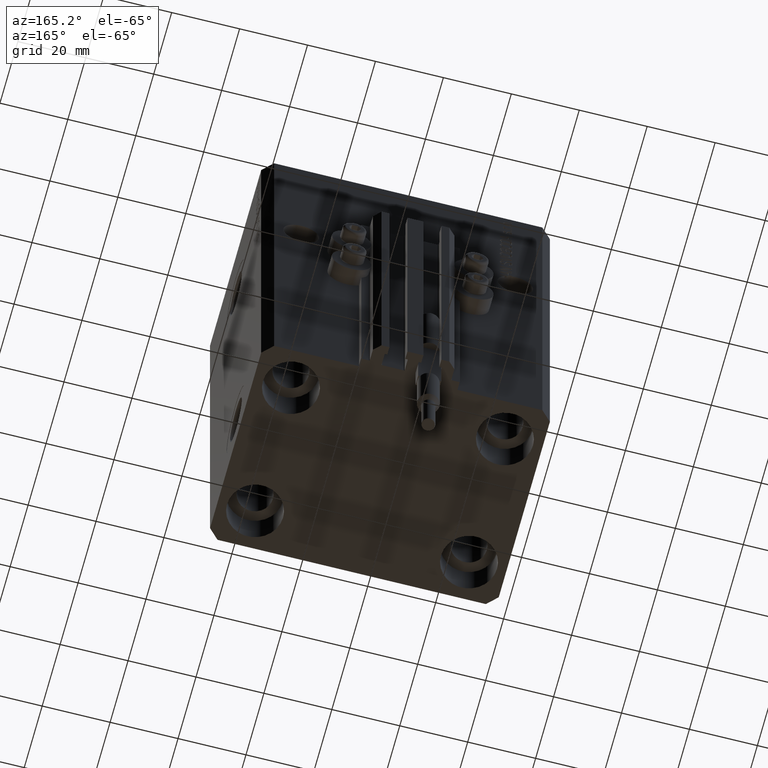
[diagram: clean part render]
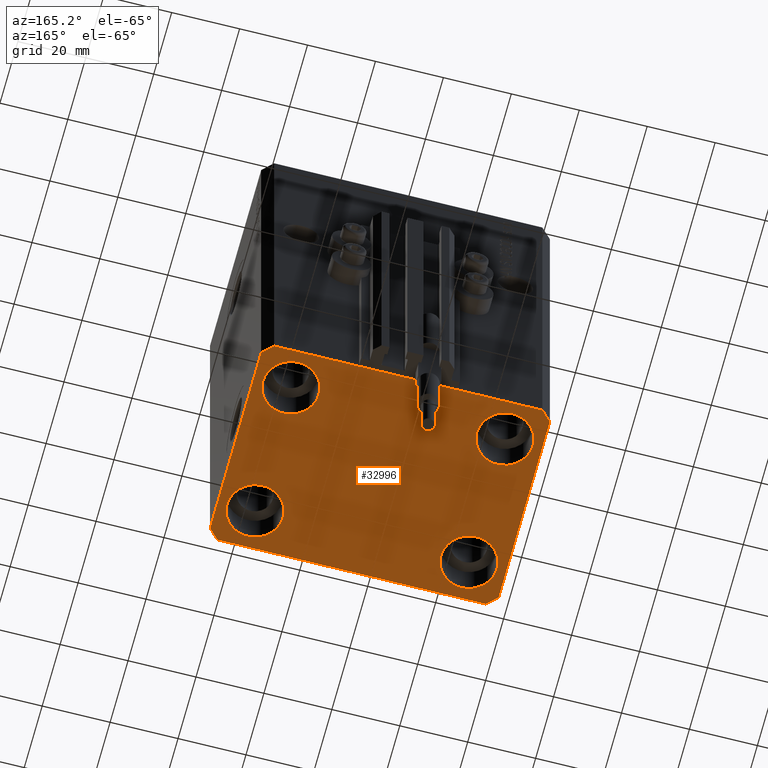
[diagram: same view with one face highlighted and labeled with its STEP entity id]
A machine part, auxiliary view. The second image highlights one B-rep face of the part: STEP entity #32996.
In plain terms, the highlighted planar face has unit normal (0, 0, 1).
Its self-contained STEP definition (entity closure, byte-faithful):
#185 = ORIENTED_EDGE ( 'NONE', *, *, #10552, .T. ) ;
#388 = VERTEX_POINT ( 'NONE', #18147 ) ;
#412 = CARTESIAN_POINT ( 'NONE',  ( 39.50000000000000711, -31.50000000000000000, -123.0000000000000000 ) ) ;
#756 = AXIS2_PLACEMENT_3D ( 'NONE', #18812, #11458, #37631 ) ;
#1199 = EDGE_CURVE ( 'NONE', #43645, #388, #7358, .T. ) ;
#1342 = ORIENTED_EDGE ( 'NONE', *, *, #24505, .F. ) ;
#1542 = CARTESIAN_POINT ( 'NONE',  ( 39.50000000000000711, -31.50000000000000000, -123.0000000000000000 ) ) ;
#1707 = EDGE_LOOP ( 'NONE', ( #45149, #185 ) ) ;
#1813 = LINE ( 'NONE', #23847, #11632 ) ;
#1995 = CARTESIAN_POINT ( 'NONE',  ( -39.75000000000000000, -20.00000000000000000, -123.0000000000000000 ) ) ;
#2059 = ORIENTED_EDGE ( 'NONE', *, *, #16062, .F. ) ;
#2182 = CARTESIAN_POINT ( 'NONE',  ( 42.50000000000000711, -28.50000000000000355, -123.0000000000000000 ) ) ;
#2294 = ORIENTED_EDGE ( 'NONE', *, *, #24194, .F. ) ;
#2515 = AXIS2_PLACEMENT_3D ( 'NONE', #4360, #45460, #20268 ) ;
#2713 = VERTEX_POINT ( 'NONE', #25180 ) ;
#2949 = CIRCLE ( 'NONE', #36535, 8.250000000000000000 ) ;
#3227 = EDGE_CURVE ( 'NONE', #14830, #2713, #1813, .T. ) ;
#3798 = DIRECTION ( 'NONE',  ( -1.000000000000000000, 0.000000000000000000, 0.000000000000000000 ) ) ;
#4141 = ORIENTED_EDGE ( 'NONE', *, *, #35540, .T. ) ;
#4277 = LINE ( 'NONE', #41690, #22049 ) ;
#4360 = CARTESIAN_POINT ( 'NONE',  ( 31.50000000000000000, -20.00000000000000000, -123.0000000000000000 ) ) ;
#4690 = ORIENTED_EDGE ( 'NONE', *, *, #39031, .T. ) ;
#4961 = VERTEX_POINT ( 'NONE', #24162 ) ;
#5766 = CARTESIAN_POINT ( 'NONE',  ( -23.25000000000000000, 20.00000000000000000, -123.0000000000000000 ) ) ;
#6188 = FACE_OUTER_BOUND ( 'NONE', #11922, .T. ) ;
#6190 = AXIS2_PLACEMENT_3D ( 'NONE', #38860, #9262, #43486 ) ;
#6289 = VERTEX_POINT ( 'NONE', #46328 ) ;
#6582 = EDGE_CURVE ( 'NONE', #388, #38317, #26707, .T. ) ;
#6678 = DIRECTION ( 'NONE',  ( 0.000000000000000000, 0.000000000000000000, 1.000000000000000000 ) ) ;
#7358 = LINE ( 'NONE', #33998, #25619 ) ;
#7962 = CIRCLE ( 'NONE', #2515, 8.249999999999992895 ) ;
#8727 = CARTESIAN_POINT ( 'NONE',  ( 23.25000000000000355, 20.00000000000001066, -123.0000000000000000 ) ) ;
#9167 = DIRECTION ( 'NONE',  ( 1.000000000000000000, 0.000000000000000000, 0.000000000000000000 ) ) ;
#9216 = CARTESIAN_POINT ( 'NONE',  ( 31.50000000000000000, 20.00000000000001066, -123.0000000000000000 ) ) ;
#9262 = DIRECTION ( 'NONE',  ( -0.000000000000000000, -0.000000000000000000, 1.000000000000000000 ) ) ;
#9516 = VERTEX_POINT ( 'NONE', #45014 ) ;
#9729 = ORIENTED_EDGE ( 'NONE', *, *, #20925, .T. ) ;
#10128 = CARTESIAN_POINT ( 'NONE',  ( 39.74999999999999289, 20.00000000000001066, -123.0000000000000000 ) ) ;
#10552 = EDGE_CURVE ( 'NONE', #22309, #6289, #2949, .T. ) ;
#10920 = CIRCLE ( 'NONE', #6190, 8.249999999999992895 ) ;
#11458 = DIRECTION ( 'NONE',  ( -0.000000000000000000, -0.000000000000000000, 1.000000000000000000 ) ) ;
#11632 = VECTOR ( 'NONE', #16263, 1000.000000000000114 ) ;
#11922 = EDGE_LOOP ( 'NONE', ( #1342, #38624, #24163, #21888, #2059, #2294, #39401, #14303 ) ) ;
#12959 = EDGE_CURVE ( 'NONE', #9516, #14830, #35676, .T. ) ;
#12971 = ORIENTED_EDGE ( 'NONE', *, *, #47471, .T. ) ;
#14303 = ORIENTED_EDGE ( 'NONE', *, *, #1199, .F. ) ;
#14426 = CARTESIAN_POINT ( 'NONE',  ( -39.50000000000000711, -31.50000000000000000, -123.0000000000000000 ) ) ;
#14830 = VERTEX_POINT ( 'NONE', #17424 ) ;
#15446 = EDGE_CURVE ( 'NONE', #6289, #22309, #40613, .T. ) ;
#16062 = EDGE_CURVE ( 'NONE', #4961, #36512, #40108, .T. ) ;
#16081 = CARTESIAN_POINT ( 'NONE',  ( -42.50000000000000000, -28.50000000000000000, -123.0000000000000000 ) ) ;
#16154 = EDGE_CURVE ( 'NONE', #42665, #38089, #23411, .T. ) ;
#16263 = DIRECTION ( 'NONE',  ( -0.7071067811865356934, 0.7071067811865594521, 0.000000000000000000 ) ) ;
#16474 = DIRECTION ( 'NONE',  ( 0.7071067811865483499, 0.7071067811865466846, 0.000000000000000000 ) ) ;
#17046 = DIRECTION ( 'NONE',  ( 1.000000000000000000, 0.000000000000000000, 0.000000000000000000 ) ) ;
#17385 = DIRECTION ( 'NONE',  ( 1.000000000000000000, 0.000000000000000000, 0.000000000000000000 ) ) ;
#17424 = CARTESIAN_POINT ( 'NONE',  ( 42.50000000000051870, 28.49999999999995381, -123.0000000000000000 ) ) ;
#17981 = AXIS2_PLACEMENT_3D ( 'NONE', #44088, #6678, #21609 ) ;
#18018 = CARTESIAN_POINT ( 'NONE',  ( 39.74999999999999289, -20.00000000000000000, -123.0000000000000000 ) ) ;
#18147 = CARTESIAN_POINT ( 'NONE',  ( -42.50000000000000000, 28.50000000000000000, -123.0000000000000000 ) ) ;
#18812 = CARTESIAN_POINT ( 'NONE',  ( -31.50000000000000000, -20.00000000000000000, -123.0000000000000000 ) ) ;
#19847 = CARTESIAN_POINT ( 'NONE',  ( -39.50000000000000711, 31.50000000000000000, -123.0000000000000000 ) ) ;
#20268 = DIRECTION ( 'NONE',  ( 1.000000000000000000, 0.000000000000000000, 0.000000000000000000 ) ) ;
#20925 = EDGE_CURVE ( 'NONE', #24383, #42198, #7962, .T. ) ;
#21470 = AXIS2_PLACEMENT_3D ( 'NONE', #48125, #37336, #41005 ) ;
#21609 = DIRECTION ( 'NONE',  ( 1.000000000000000000, 0.000000000000000000, -0.000000000000000000 ) ) ;
#21888 = ORIENTED_EDGE ( 'NONE', *, *, #43323, .F. ) ;
#22049 = VECTOR ( 'NONE', #3798, 1000.000000000000000 ) ;
#22309 = VERTEX_POINT ( 'NONE', #5766 ) ;
#22705 = LINE ( 'NONE', #16081, #35281 ) ;
#22722 = CIRCLE ( 'NONE', #45363, 8.249999999999992895 ) ;
#23009 = CARTESIAN_POINT ( 'NONE',  ( -42.50000000000000000, -28.50000000000000000, -123.0000000000000000 ) ) ;
#23411 = CIRCLE ( 'NONE', #756, 8.250000000000000000 ) ;
#23553 = ORIENTED_EDGE ( 'NONE', *, *, #32558, .T. ) ;
#23595 = EDGE_LOOP ( 'NONE', ( #23553, #4141 ) ) ;
#23838 = EDGE_LOOP ( 'NONE', ( #4690, #9729 ) ) ;
#23847 = CARTESIAN_POINT ( 'NONE',  ( 42.50000000000051870, 28.49999999999995381, -123.0000000000000000 ) ) ;
#24162 = CARTESIAN_POINT ( 'NONE',  ( -39.50000000000000711, -31.50000000000000000, -123.0000000000000000 ) ) ;
#24163 = ORIENTED_EDGE ( 'NONE', *, *, #12959, .F. ) ;
#24194 = EDGE_CURVE ( 'NONE', #38317, #4961, #22705, .T. ) ;
#24383 = VERTEX_POINT ( 'NONE', #18018 ) ;
#24505 = EDGE_CURVE ( 'NONE', #2713, #43645, #4277, .T. ) ;
#24663 = VERTEX_POINT ( 'NONE', #10128 ) ;
#24716 = DIRECTION ( 'NONE',  ( -0.000000000000000000, -0.000000000000000000, 1.000000000000000000 ) ) ;
#25180 = CARTESIAN_POINT ( 'NONE',  ( 39.50000000000056843, 31.50000000000000000, -123.0000000000000000 ) ) ;
#25285 = FACE_BOUND ( 'NONE', #1707, .T. ) ;
#25524 = FACE_BOUND ( 'NONE', #41248, .T. ) ;
#25596 = VECTOR ( 'NONE', #37945, 1000.000000000000000 ) ;
#25619 = VECTOR ( 'NONE', #33762, 1000.000000000000000 ) ;
#26707 = LINE ( 'NONE', #41609, #25596 ) ;
#28598 = DIRECTION ( 'NONE',  ( 8.886653596232072440E-15, 1.000000000000000000, 0.000000000000000000 ) ) ;
#28928 = FACE_BOUND ( 'NONE', #23838, .T. ) ;
#30253 = DIRECTION ( 'NONE',  ( 0.7071067811865471286, -0.7071067811865479058, 0.000000000000000000 ) ) ;
#30330 = VERTEX_POINT ( 'NONE', #8727 ) ;
#31208 = AXIS2_PLACEMENT_3D ( 'NONE', #38764, #46111, #9167 ) ;
#31767 = DIRECTION ( 'NONE',  ( -0.000000000000000000, -0.000000000000000000, 1.000000000000000000 ) ) ;
#32419 = DIRECTION ( 'NONE',  ( -0.000000000000000000, -0.000000000000000000, 1.000000000000000000 ) ) ;
#32558 = EDGE_CURVE ( 'NONE', #30330, #24663, #10920, .T. ) ;
#32996 = ADVANCED_FACE ( 'NONE', ( #25524, #28928, #35770, #25285, #6188 ), #40188, .F. ) ;
#33762 = DIRECTION ( 'NONE',  ( -0.7071067811865471286, -0.7071067811865479058, 0.000000000000000000 ) ) ;
#33998 = CARTESIAN_POINT ( 'NONE',  ( -39.50000000000000711, 31.50000000000000000, -123.0000000000000000 ) ) ;
#34484 = CARTESIAN_POINT ( 'NONE',  ( -23.25000000000000000, -20.00000000000000000, -123.0000000000000000 ) ) ;
#35281 = VECTOR ( 'NONE', #30253, 1000.000000000000000 ) ;
#35540 = EDGE_CURVE ( 'NONE', #24663, #30330, #22722, .T. ) ;
#35676 = LINE ( 'NONE', #2182, #48319 ) ;
#35770 = FACE_BOUND ( 'NONE', #23595, .T. ) ;
#36512 = VERTEX_POINT ( 'NONE', #412 ) ;
#36535 = AXIS2_PLACEMENT_3D ( 'NONE', #46243, #24716, #17385 ) ;
#37336 = DIRECTION ( 'NONE',  ( -0.000000000000000000, -0.000000000000000000, 1.000000000000000000 ) ) ;
#37631 = DIRECTION ( 'NONE',  ( 1.000000000000000000, 0.000000000000000000, 0.000000000000000000 ) ) ;
#37945 = DIRECTION ( 'NONE',  ( 0.000000000000000000, -1.000000000000000000, 0.000000000000000000 ) ) ;
#38089 = VERTEX_POINT ( 'NONE', #1995 ) ;
#38317 = VERTEX_POINT ( 'NONE', #23009 ) ;
#38624 = ORIENTED_EDGE ( 'NONE', *, *, #3227, .F. ) ;
#38764 = CARTESIAN_POINT ( 'NONE',  ( -31.50000000000000000, 20.00000000000000000, -123.0000000000000000 ) ) ;
#38860 = CARTESIAN_POINT ( 'NONE',  ( 31.50000000000000000, 20.00000000000001066, -123.0000000000000000 ) ) ;
#39031 = EDGE_CURVE ( 'NONE', #42198, #24383, #43028, .T. ) ;
#39115 = AXIS2_PLACEMENT_3D ( 'NONE', #43762, #31767, #39860 ) ;
#39374 = ORIENTED_EDGE ( 'NONE', *, *, #16154, .T. ) ;
#39401 = ORIENTED_EDGE ( 'NONE', *, *, #6582, .F. ) ;
#39860 = DIRECTION ( 'NONE',  ( 1.000000000000000000, 0.000000000000000000, 0.000000000000000000 ) ) ;
#40108 = LINE ( 'NONE', #14426, #44512 ) ;
#40188 = PLANE ( 'NONE',  #17981 ) ;
#40613 = CIRCLE ( 'NONE', #31208, 8.250000000000000000 ) ;
#41005 = DIRECTION ( 'NONE',  ( 1.000000000000000000, 0.000000000000000000, 0.000000000000000000 ) ) ;
#41248 = EDGE_LOOP ( 'NONE', ( #12971, #39374 ) ) ;
#41609 = CARTESIAN_POINT ( 'NONE',  ( -42.50000000000000000, 28.50000000000000000, -123.0000000000000000 ) ) ;
#41690 = CARTESIAN_POINT ( 'NONE',  ( 39.50000000000056843, 31.50000000000000000, -123.0000000000000000 ) ) ;
#41958 = CARTESIAN_POINT ( 'NONE',  ( 23.25000000000000355, -20.00000000000000000, -123.0000000000000000 ) ) ;
#42198 = VERTEX_POINT ( 'NONE', #41958 ) ;
#42665 = VERTEX_POINT ( 'NONE', #34484 ) ;
#43028 = CIRCLE ( 'NONE', #39115, 8.249999999999992895 ) ;
#43303 = CIRCLE ( 'NONE', #21470, 8.250000000000000000 ) ;
#43323 = EDGE_CURVE ( 'NONE', #36512, #9516, #43355, .T. ) ;
#43355 = LINE ( 'NONE', #1542, #43966 ) ;
#43486 = DIRECTION ( 'NONE',  ( 1.000000000000000000, 0.000000000000000000, 0.000000000000000000 ) ) ;
#43645 = VERTEX_POINT ( 'NONE', #19847 ) ;
#43762 = CARTESIAN_POINT ( 'NONE',  ( 31.50000000000000000, -20.00000000000000000, -123.0000000000000000 ) ) ;
#43966 = VECTOR ( 'NONE', #16474, 1000.000000000000000 ) ;
#44006 = DIRECTION ( 'NONE',  ( 1.000000000000000000, 0.000000000000000000, 0.000000000000000000 ) ) ;
#44088 = CARTESIAN_POINT ( 'NONE',  ( 0.000000000000000000, 0.000000000000000000, -123.0000000000000000 ) ) ;
#44512 = VECTOR ( 'NONE', #44006, 1000.000000000000000 ) ;
#45014 = CARTESIAN_POINT ( 'NONE',  ( 42.50000000000000711, -28.50000000000000355, -123.0000000000000000 ) ) ;
#45149 = ORIENTED_EDGE ( 'NONE', *, *, #15446, .T. ) ;
#45363 = AXIS2_PLACEMENT_3D ( 'NONE', #9216, #32419, #17046 ) ;
#45460 = DIRECTION ( 'NONE',  ( -0.000000000000000000, -0.000000000000000000, 1.000000000000000000 ) ) ;
#46111 = DIRECTION ( 'NONE',  ( -0.000000000000000000, -0.000000000000000000, 1.000000000000000000 ) ) ;
#46243 = CARTESIAN_POINT ( 'NONE',  ( -31.50000000000000000, 20.00000000000000000, -123.0000000000000000 ) ) ;
#46328 = CARTESIAN_POINT ( 'NONE',  ( -39.75000000000000000, 20.00000000000000000, -123.0000000000000000 ) ) ;
#47471 = EDGE_CURVE ( 'NONE', #38089, #42665, #43303, .T. ) ;
#48125 = CARTESIAN_POINT ( 'NONE',  ( -31.50000000000000000, -20.00000000000000000, -123.0000000000000000 ) ) ;
#48319 = VECTOR ( 'NONE', #28598, 1000.000000000000000 ) ;